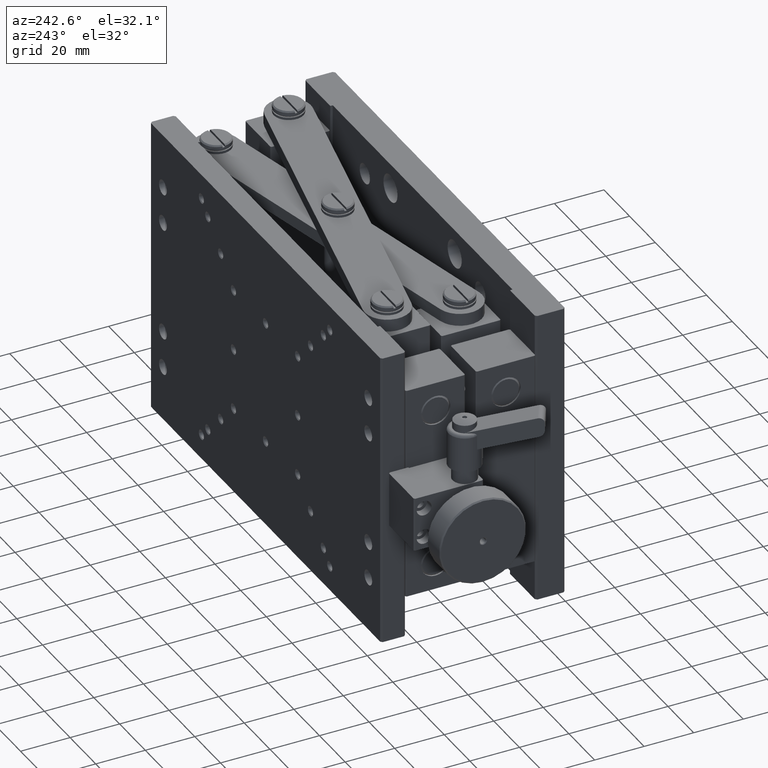
[diagram: clean part render]
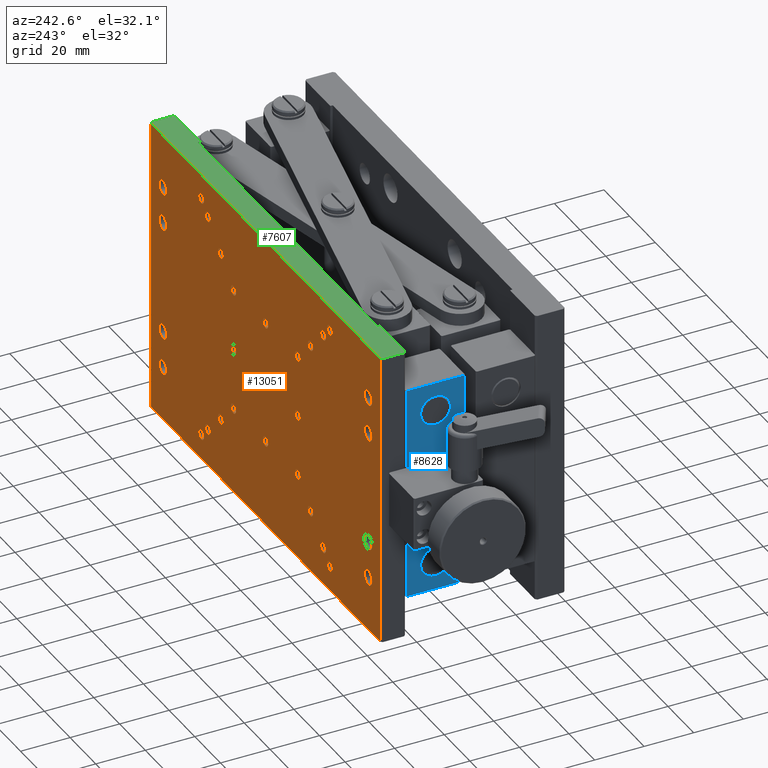
[diagram: same view with three faces highlighted in distinct colors, each labeled with its STEP entity id]
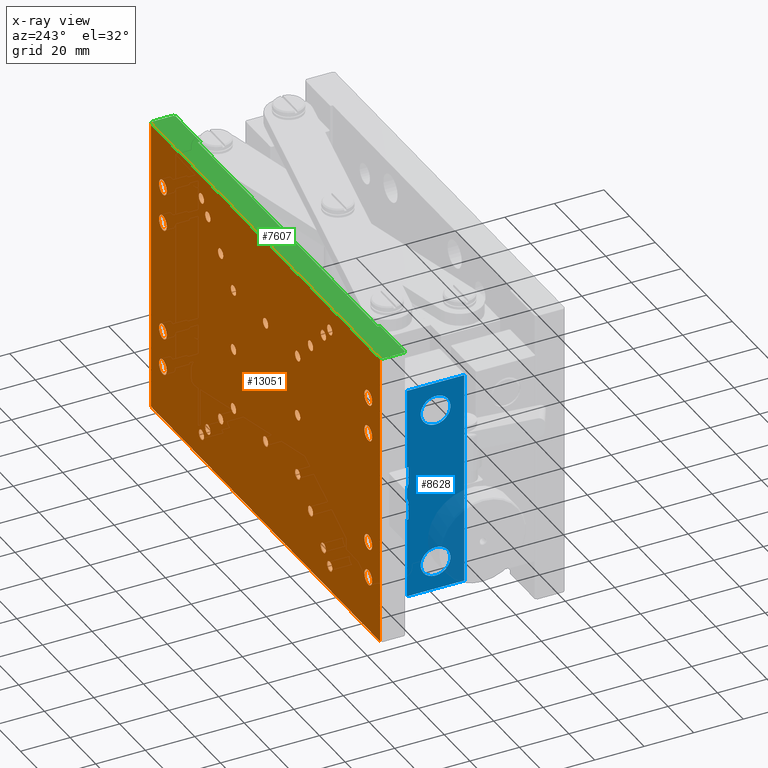
[diagram: x-ray of the same camera — body ghosted, the three highlighted faces saturated]
A machine part, auxiliary view with three faces highlighted in distinct colors.
The next image is the same camera in x-ray (body ghosted, the three faces saturated) — at least one of them is partly hidden behind the body in this view.
Their STEP definitions:

[orange] entity #13051 — the highlighted planar face has unit normal (-0, 1, 0).
#4 = EDGE_LOOP ( 'NONE', ( #4745 ) ) ;
#5 = CARTESIAN_POINT ( 'NONE',  ( 170.0000000000000000, 74.41000000000001080, -33.99999999999999289 ) ) ;
#47 = EDGE_CURVE ( 'NONE', #11344, #11344, #988, .T. ) ;
#48 = ORIENTED_EDGE ( 'NONE', *, *, #11168, .T. ) ;
#71 = ORIENTED_EDGE ( 'NONE', *, *, #3906, .T. ) ;
#86 = VERTEX_POINT ( 'NONE', #5390 ) ;
#116 = EDGE_CURVE ( 'NONE', #1397, #1397, #6694, .T. ) ;
#137 = EDGE_CURVE ( 'NONE', #13938, #13938, #13946, .T. ) ;
#154 = CARTESIAN_POINT ( 'NONE',  ( 125.0000000000000000, 74.41000000000030923, -25.00000000000000000 ) ) ;
#220 = CARTESIAN_POINT ( 'NONE',  ( 140.0000000000000000, 74.40999999993437086, -10.00000000000000000 ) ) ;
#232 = ORIENTED_EDGE ( 'NONE', *, *, #10275, .T. ) ;
#329 = AXIS2_PLACEMENT_3D ( 'NONE', #5728, #9763, #14896 ) ;
#420 = EDGE_CURVE ( 'NONE', #1726, #1726, #14221, .T. ) ;
#456 = VERTEX_POINT ( 'NONE', #14339 ) ;
#587 = PLANE ( 'NONE',  #15049 ) ;
#623 = VERTEX_POINT ( 'NONE', #11069 ) ;
#647 = CARTESIAN_POINT ( 'NONE',  ( 179.2899999999999920, 74.41000000000001080, 0.000000000000000000 ) ) ;
#668 = EDGE_LOOP ( 'NONE', ( #8953 ) ) ;
#687 = CARTESIAN_POINT ( 'NONE',  ( 45.00000000000000000, 74.41000000000030923, -103.0000000000086402 ) ) ;
#749 = CIRCLE ( 'NONE', #2888, 1.999999999952706276 ) ;
#867 = VERTEX_POINT ( 'NONE', #8444 ) ;
#889 = EDGE_LOOP ( 'NONE', ( #9336, #48, #10007, #15611 ) ) ;
#911 = EDGE_LOOP ( 'NONE', ( #16242 ) ) ;
#988 = CIRCLE ( 'NONE', #3148, 1.999999999995907718 ) ;
#1034 = EDGE_CURVE ( 'NONE', #14275, #14275, #8035, .T. ) ;
#1037 = DIRECTION ( 'NONE',  ( 0.000000000000000000, -1.000000000000000000, -0.000000000000000000 ) ) ;
#1068 = CARTESIAN_POINT ( 'NONE',  ( 140.0000000000000000, 74.40999999993437086, -8.000000000047293724 ) ) ;
#1124 = EDGE_CURVE ( 'NONE', #10653, #10653, #2953, .T. ) ;
#1136 = ORIENTED_EDGE ( 'NONE', *, *, #1034, .T. ) ;
#1181 = DIRECTION ( 'NONE',  ( -0.000000000000000000, -1.000000000000000000, -0.000000000000000000 ) ) ;
#1208 = VERTEX_POINT ( 'NONE', #6342 ) ;
#1257 = EDGE_CURVE ( 'NONE', #4088, #4088, #3766, .T. ) ;
#1261 = CIRCLE ( 'NONE', #16063, 1.999999999995907718 ) ;
#1267 = VECTOR ( 'NONE', #14893, 1000.000000000000000 ) ;
#1339 = FACE_BOUND ( 'NONE', #16145, .T. ) ;
#1360 = VERTEX_POINT ( 'NONE', #11634 ) ;
#1397 = VERTEX_POINT ( 'NONE', #12586 ) ;
#1590 = CARTESIAN_POINT ( 'NONE',  ( 179.2899999999999920, 74.41000000000001080, -120.0000000000000000 ) ) ;
#1591 = AXIS2_PLACEMENT_3D ( 'NONE', #15693, #7951, #13078 ) ;
#1592 = CARTESIAN_POINT ( 'NONE',  ( 55.00000000000000000, 74.41000000000030923, -25.00000000000000000 ) ) ;
#1624 = VECTOR ( 'NONE', #15797, 1000.000000000000000 ) ;
#1674 = EDGE_LOOP ( 'NONE', ( #5712 ) ) ;
#1678 = FACE_BOUND ( 'NONE', #6569, .T. ) ;
#1726 = VERTEX_POINT ( 'NONE', #4345 ) ;
#1741 = LINE ( 'NONE', #14550, #1624 ) ;
#2011 = CARTESIAN_POINT ( 'NONE',  ( 135.0000000000000000, 74.40999999992982339, -15.00000000000000000 ) ) ;
#2061 = CIRCLE ( 'NONE', #10127, 1.999999999973176124 ) ;
#2065 = VECTOR ( 'NONE', #11376, 1000.000000000000000 ) ;
#2079 = EDGE_CURVE ( 'NONE', #7115, #7115, #12461, .T. ) ;
#2142 = CIRCLE ( 'NONE', #5103, 2.000000000007273737 ) ;
#2197 = CARTESIAN_POINT ( 'NONE',  ( 65.00000000000000000, 74.41000000000030923, -60.00000000000000000 ) ) ;
#2236 = CARTESIAN_POINT ( 'NONE',  ( 115.0000000000000000, 74.41000000000030923, -85.00000000000000000 ) ) ;
#2394 = ORIENTED_EDGE ( 'NONE', *, *, #2079, .T. ) ;
#2476 = EDGE_LOOP ( 'NONE', ( #9426 ) ) ;
#2615 = CIRCLE ( 'NONE', #9068, 3.000000000000002665 ) ;
#2646 = ORIENTED_EDGE ( 'NONE', *, *, #3522, .T. ) ;
#2673 = CIRCLE ( 'NONE', #4823, 1.999999999984541921 ) ;
#2764 = VERTEX_POINT ( 'NONE', #10431 ) ;
#2766 = FACE_BOUND ( 'NONE', #14585, .T. ) ;
#2805 = ORIENTED_EDGE ( 'NONE', *, *, #8107, .T. ) ;
#2822 = CARTESIAN_POINT ( 'NONE',  ( 65.00000000000000000, 74.41000000000030923, -33.00000000001546141 ) ) ;
#2855 = DIRECTION ( 'NONE',  ( 0.000000000000000000, 0.000000000000000000, 1.000000000000000000 ) ) ;
#2888 = AXIS2_PLACEMENT_3D ( 'NONE', #2011, #16400, #14974 ) ;
#2893 = CIRCLE ( 'NONE', #10118, 2.000000000007273737 ) ;
#2900 = ORIENTED_EDGE ( 'NONE', *, *, #14664, .T. ) ;
#2915 = AXIS2_PLACEMENT_3D ( 'NONE', #154, #4095, #6710 ) ;
#2928 = VERTEX_POINT ( 'NONE', #15924 ) ;
#2953 = CIRCLE ( 'NONE', #10762, 3.000000000000002665 ) ;
#3107 = DIRECTION ( 'NONE',  ( 0.000000000000000000, -0.000000000000000000, 1.000000000000000000 ) ) ;
#3148 = AXIS2_PLACEMENT_3D ( 'NONE', #12343, #12498, #5959 ) ;
#3182 = DIRECTION ( 'NONE',  ( 0.000000000000000000, -1.000000000000000000, -0.000000000000000000 ) ) ;
#3275 = DIRECTION ( 'NONE',  ( 0.000000000000000000, 0.000000000000000000, 1.000000000000000000 ) ) ;
#3388 = DIRECTION ( 'NONE',  ( 0.000000000000000000, -1.000000000000000000, -0.000000000000000000 ) ) ;
#3405 = CARTESIAN_POINT ( 'NONE',  ( 40.00000000000000000, 74.41000000000030923, -110.0000000000000000 ) ) ;
#3522 = EDGE_CURVE ( 'NONE', #1208, #1208, #749, .T. ) ;
#3636 = DIRECTION ( 'NONE',  ( -0.000000000000000000, -1.000000000000000000, -0.000000000000000000 ) ) ;
#3693 = AXIS2_PLACEMENT_3D ( 'NONE', #7265, #8527, #11232 ) ;
#3749 = AXIS2_PLACEMENT_3D ( 'NONE', #220, #5352, #12830 ) ;
#3766 = CIRCLE ( 'NONE', #11286, 1.999999999984541921 ) ;
#3783 = AXIS2_PLACEMENT_3D ( 'NONE', #10044, #7418, #16349 ) ;
#3788 = FACE_BOUND ( 'NONE', #911, .T. ) ;
#3869 = FACE_BOUND ( 'NONE', #8649, .T. ) ;
#3872 = CIRCLE ( 'NONE', #13010, 3.000000000000002665 ) ;
#3906 = EDGE_CURVE ( 'NONE', #456, #456, #9228, .T. ) ;
#3952 = DIRECTION ( 'NONE',  ( 0.000000000000000000, 0.000000000000000000, 1.000000000000000000 ) ) ;
#3957 = CIRCLE ( 'NONE', #7989, 3.000000000000002665 ) ;
#3994 = AXIS2_PLACEMENT_3D ( 'NONE', #9095, #1181, #2855 ) ;
#4003 = EDGE_CURVE ( 'NONE', #9371, #9371, #16210, .T. ) ;
#4031 = EDGE_LOOP ( 'NONE', ( #11886 ) ) ;
#4038 = FACE_BOUND ( 'NONE', #10939, .T. ) ;
#4050 = EDGE_LOOP ( 'NONE', ( #12443 ) ) ;
#4059 = ORIENTED_EDGE ( 'NONE', *, *, #1124, .T. ) ;
#4075 = CIRCLE ( 'NONE', #13488, 3.000000000000002665 ) ;
#4088 = VERTEX_POINT ( 'NONE', #2822 ) ;
#4095 = DIRECTION ( 'NONE',  ( 0.000000000000000000, -1.000000000000000000, -0.000000000000000000 ) ) ;
#4207 = EDGE_LOOP ( 'NONE', ( #15286 ) ) ;
#4345 = CARTESIAN_POINT ( 'NONE',  ( 170.0000000000000000, 74.41000000000001080, -19.00000000000000000 ) ) ;
#4358 = DIRECTION ( 'NONE',  ( -0.000000000000000000, -1.000000000000000000, -0.000000000000000000 ) ) ;
#4379 = VERTEX_POINT ( 'NONE', #6854 ) ;
#4409 = VERTEX_POINT ( 'NONE', #12991 ) ;
#4486 = CARTESIAN_POINT ( 'NONE',  ( 55.00000000000000000, 74.41000000000030923, -23.00000000002455636 ) ) ;
#4655 = ORIENTED_EDGE ( 'NONE', *, *, #6371, .T. ) ;
#4745 = ORIENTED_EDGE ( 'NONE', *, *, #4003, .T. ) ;
#4810 = CARTESIAN_POINT ( 'NONE',  ( 179.2899999999999920, 74.41000000000001080, -120.0000000000000000 ) ) ;
#4811 = LINE ( 'NONE', #6157, #2065 ) ;
#4823 = AXIS2_PLACEMENT_3D ( 'NONE', #5882, #9753, #3275 ) ;
#4861 = EDGE_LOOP ( 'NONE', ( #8198 ) ) ;
#5043 = FACE_BOUND ( 'NONE', #6537, .T. ) ;
#5103 = AXIS2_PLACEMENT_3D ( 'NONE', #6466, #11760, #12938 ) ;
#5145 = EDGE_CURVE ( 'NONE', #6294, #2928, #1741, .T. ) ;
#5150 = DIRECTION ( 'NONE',  ( 0.000000000000000000, 0.000000000000000000, 1.000000000000000000 ) ) ;
#5225 = DIRECTION ( 'NONE',  ( 0.000000000000000000, 0.000000000000000000, 1.000000000000000000 ) ) ;
#5256 = EDGE_CURVE ( 'NONE', #867, #867, #2673, .T. ) ;
#5352 = DIRECTION ( 'NONE',  ( 0.000000000000000000, -1.000000000000000000, -0.000000000000000000 ) ) ;
#5390 = CARTESIAN_POINT ( 'NONE',  ( 125.0000000000000000, 74.41000000000030923, -23.00000000002455636 ) ) ;
#5466 = FACE_BOUND ( 'NONE', #2476, .T. ) ;
#5637 = FACE_BOUND ( 'NONE', #5989, .T. ) ;
#5638 = DIRECTION ( 'NONE',  ( 0.000000000000000000, 0.000000000000000000, 1.000000000000000000 ) ) ;
#5663 = ORIENTED_EDGE ( 'NONE', *, *, #8146, .T. ) ;
#5712 = ORIENTED_EDGE ( 'NONE', *, *, #116, .T. ) ;
#5728 = CARTESIAN_POINT ( 'NONE',  ( 135.0000000000000000, 74.41000000000030923, -105.0000000000000000 ) ) ;
#5882 = CARTESIAN_POINT ( 'NONE',  ( 115.0000000000000000, 74.41000000000030923, -35.00000000000000000 ) ) ;
#5907 = DIRECTION ( 'NONE',  ( 0.000000000000000000, 0.000000000000000000, 1.000000000000000000 ) ) ;
#5959 = DIRECTION ( 'NONE',  ( 0.000000000000000000, 0.000000000000000000, 1.000000000000000000 ) ) ;
#5966 = ORIENTED_EDGE ( 'NONE', *, *, #7916, .T. ) ;
#5989 = EDGE_LOOP ( 'NONE', ( #2394 ) ) ;
#6005 = CARTESIAN_POINT ( 'NONE',  ( 170.0000000000000000, 74.41000000000001080, -80.00000000000000000 ) ) ;
#6014 = DIRECTION ( 'NONE',  ( 0.000000000000000000, 0.000000000000000000, 1.000000000000000000 ) ) ;
#6073 = ORIENTED_EDGE ( 'NONE', *, *, #137, .T. ) ;
#6157 = CARTESIAN_POINT ( 'NONE',  ( 0.7100000000000161737, 74.41000000000001080, -120.0000000000000000 ) ) ;
#6177 = EDGE_LOOP ( 'NONE', ( #1136 ) ) ;
#6229 = DIRECTION ( 'NONE',  ( 0.000000000000000000, 0.000000000000000000, 1.000000000000000000 ) ) ;
#6248 = VERTEX_POINT ( 'NONE', #8937 ) ;
#6294 = VERTEX_POINT ( 'NONE', #4810 ) ;
#6311 = FACE_BOUND ( 'NONE', #13715, .T. ) ;
#6342 = CARTESIAN_POINT ( 'NONE',  ( 135.0000000000000000, 74.40999999992982339, -13.00000000004729372 ) ) ;
#6371 = EDGE_CURVE ( 'NONE', #10116, #10116, #3872, .T. ) ;
#6402 = CARTESIAN_POINT ( 'NONE',  ( 90.00000000000000000, 74.41000000000030923, -35.00000000000000000 ) ) ;
#6466 = CARTESIAN_POINT ( 'NONE',  ( 115.0000000000000000, 74.41000000000030923, -60.00000000000000000 ) ) ;
#6537 = EDGE_LOOP ( 'NONE', ( #71 ) ) ;
#6560 = DIRECTION ( 'NONE',  ( -0.000000000000000000, -1.000000000000000000, -0.000000000000000000 ) ) ;
#6569 = EDGE_LOOP ( 'NONE', ( #2805 ) ) ;
#6694 = CIRCLE ( 'NONE', #1591, 1.999999999982265964 ) ;
#6710 = DIRECTION ( 'NONE',  ( 0.000000000000000000, 0.000000000000000000, 1.000000000000000000 ) ) ;
#6733 = CARTESIAN_POINT ( 'NONE',  ( 90.00000000000000000, 74.41000000000030923, -85.00000000000000000 ) ) ;
#6826 = CARTESIAN_POINT ( 'NONE',  ( 10.00000000000000000, 74.41000000000001080, -80.00000000000000000 ) ) ;
#6854 = CARTESIAN_POINT ( 'NONE',  ( 179.2899999999999920, 74.41000000000001080, 0.000000000000000000 ) ) ;
#6905 = VERTEX_POINT ( 'NONE', #12208 ) ;
#6980 = EDGE_LOOP ( 'NONE', ( #4059 ) ) ;
#7018 = VERTEX_POINT ( 'NONE', #4486 ) ;
#7059 = FACE_BOUND ( 'NONE', #15423, .T. ) ;
#7071 = VERTEX_POINT ( 'NONE', #687 ) ;
#7115 = VERTEX_POINT ( 'NONE', #12241 ) ;
#7265 = CARTESIAN_POINT ( 'NONE',  ( 125.0000000000000000, 74.41000000000030923, -95.00000000000000000 ) ) ;
#7323 = DIRECTION ( 'NONE',  ( 0.000000000000000000, -1.000000000000000000, -0.000000000000000000 ) ) ;
#7418 = DIRECTION ( 'NONE',  ( 0.000000000000000000, -1.000000000000000000, -0.000000000000000000 ) ) ;
#7595 = DIRECTION ( 'NONE',  ( -0.000000000000000000, -1.000000000000000000, -0.000000000000000000 ) ) ;
#7823 = EDGE_CURVE ( 'NONE', #7843, #7843, #4075, .T. ) ;
#7843 = VERTEX_POINT ( 'NONE', #6826 ) ;
#7861 = CARTESIAN_POINT ( 'NONE',  ( 115.0000000000000000, 74.41000000000030923, -83.00000000002683009 ) ) ;
#7901 = FACE_BOUND ( 'NONE', #10663, .T. ) ;
#7914 = DIRECTION ( 'NONE',  ( 0.000000000000000000, 0.000000000000000000, 1.000000000000000000 ) ) ;
#7916 = EDGE_CURVE ( 'NONE', #1360, #1360, #9185, .T. ) ;
#7951 = DIRECTION ( 'NONE',  ( 0.000000000000000000, -1.000000000000000000, -0.000000000000000000 ) ) ;
#7989 = AXIS2_PLACEMENT_3D ( 'NONE', #12556, #7595, #8693 ) ;
#7994 = DIRECTION ( 'NONE',  ( -0.000000000000000000, -1.000000000000000000, -0.000000000000000000 ) ) ;
#8035 = CIRCLE ( 'NONE', #3994, 2.999999999999999112 ) ;
#8079 = DIRECTION ( 'NONE',  ( 0.000000000000000000, -1.000000000000000000, -0.000000000000000000 ) ) ;
#8107 = EDGE_CURVE ( 'NONE', #6905, #6905, #10478, .T. ) ;
#8146 = EDGE_CURVE ( 'NONE', #13381, #13381, #2142, .T. ) ;
#8159 = FACE_BOUND ( 'NONE', #4050, .T. ) ;
#8172 = CARTESIAN_POINT ( 'NONE',  ( 170.0000000000000000, 74.41000000000001080, -98.00000000000000000 ) ) ;
#8184 = AXIS2_PLACEMENT_3D ( 'NONE', #12391, #3388, #15081 ) ;
#8198 = ORIENTED_EDGE ( 'NONE', *, *, #10224, .T. ) ;
#8444 = CARTESIAN_POINT ( 'NONE',  ( 115.0000000000000000, 74.41000000000030923, -33.00000000001546141 ) ) ;
#8527 = DIRECTION ( 'NONE',  ( 0.000000000000000000, -1.000000000000000000, -0.000000000000000000 ) ) ;
#8547 = CIRCLE ( 'NONE', #2915, 1.999999999975444975 ) ;
#8649 = EDGE_LOOP ( 'NONE', ( #4655 ) ) ;
#8693 = DIRECTION ( 'NONE',  ( 0.000000000000000000, 0.000000000000000000, 1.000000000000000000 ) ) ;
#8850 = EDGE_LOOP ( 'NONE', ( #2646 ) ) ;
#8853 = CIRCLE ( 'NONE', #11552, 1.999999999973176124 ) ;
#8863 = EDGE_CURVE ( 'NONE', #7071, #7071, #9430, .T. ) ;
#8899 = ORIENTED_EDGE ( 'NONE', *, *, #8863, .T. ) ;
#8916 = FACE_BOUND ( 'NONE', #668, .T. ) ;
#8937 = CARTESIAN_POINT ( 'NONE',  ( 65.00000000000000000, 74.41000000000030923, -57.99999999999272404 ) ) ;
#8953 = ORIENTED_EDGE ( 'NONE', *, *, #14393, .T. ) ;
#8998 = FACE_BOUND ( 'NONE', #15600, .T. ) ;
#9068 = AXIS2_PLACEMENT_3D ( 'NONE', #10412, #13943, #9150 ) ;
#9095 = CARTESIAN_POINT ( 'NONE',  ( 10.00000000000000000, 74.41000000000001080, -22.00000000000000000 ) ) ;
#9150 = DIRECTION ( 'NONE',  ( 0.000000000000000000, 0.000000000000000000, 1.000000000000000000 ) ) ;
#9168 = VERTEX_POINT ( 'NONE', #12867 ) ;
#9185 = CIRCLE ( 'NONE', #329, 1.999999999991355804 ) ;
#9228 = CIRCLE ( 'NONE', #14889, 3.000000000000002665 ) ;
#9336 = ORIENTED_EDGE ( 'NONE', *, *, #5145, .T. ) ;
#9365 = AXIS2_PLACEMENT_3D ( 'NONE', #6402, #14312, #5225 ) ;
#9371 = VERTEX_POINT ( 'NONE', #7861 ) ;
#9424 = DIRECTION ( 'NONE',  ( 0.000000000000000000, 0.000000000000000000, 1.000000000000000000 ) ) ;
#9426 = ORIENTED_EDGE ( 'NONE', *, *, #10294, .T. ) ;
#9430 = CIRCLE ( 'NONE', #3783, 1.999999999991355804 ) ;
#9753 = DIRECTION ( 'NONE',  ( 0.000000000000000000, -1.000000000000000000, -0.000000000000000000 ) ) ;
#9763 = DIRECTION ( 'NONE',  ( 0.000000000000000000, -1.000000000000000000, -0.000000000000000000 ) ) ;
#10007 = ORIENTED_EDGE ( 'NONE', *, *, #11835, .T. ) ;
#10044 = CARTESIAN_POINT ( 'NONE',  ( 45.00000000000000000, 74.41000000000030923, -105.0000000000000000 ) ) ;
#10116 = VERTEX_POINT ( 'NONE', #13737 ) ;
#10118 = AXIS2_PLACEMENT_3D ( 'NONE', #2197, #7323, #15078 ) ;
#10127 = AXIS2_PLACEMENT_3D ( 'NONE', #13799, #11126, #6229 ) ;
#10184 = FACE_BOUND ( 'NONE', #4861, .T. ) ;
#10224 = EDGE_CURVE ( 'NONE', #14381, #14381, #3957, .T. ) ;
#10275 = EDGE_CURVE ( 'NONE', #11613, #11613, #1261, .T. ) ;
#10294 = EDGE_CURVE ( 'NONE', #9168, #9168, #12548, .T. ) ;
#10412 = CARTESIAN_POINT ( 'NONE',  ( 170.0000000000000000, 74.41000000000001080, -83.00000000000000000 ) ) ;
#10431 = CARTESIAN_POINT ( 'NONE',  ( 90.00000000000000000, 74.41000000000030923, -33.00000000001546141 ) ) ;
#10432 = FACE_BOUND ( 'NONE', #8850, .T. ) ;
#10478 = CIRCLE ( 'NONE', #11819, 1.999999999952706276 ) ;
#10513 = DIRECTION ( 'NONE',  ( 0.000000000000000000, 0.000000000000000000, 1.000000000000000000 ) ) ;
#10564 = EDGE_LOOP ( 'NONE', ( #14534 ) ) ;
#10597 = FACE_BOUND ( 'NONE', #13681, .T. ) ;
#10653 = VERTEX_POINT ( 'NONE', #11839 ) ;
#10663 = EDGE_LOOP ( 'NONE', ( #5663 ) ) ;
#10685 = AXIS2_PLACEMENT_3D ( 'NONE', #1592, #8079, #5638 ) ;
#10713 = ORIENTED_EDGE ( 'NONE', *, *, #47, .T. ) ;
#10762 = AXIS2_PLACEMENT_3D ( 'NONE', #8172, #7994, #7914 ) ;
#10794 = EDGE_CURVE ( 'NONE', #2764, #2764, #11781, .T. ) ;
#10809 = EDGE_LOOP ( 'NONE', ( #13857 ) ) ;
#10859 = FACE_BOUND ( 'NONE', #10564, .T. ) ;
#10939 = EDGE_LOOP ( 'NONE', ( #6073 ) ) ;
#11069 = CARTESIAN_POINT ( 'NONE',  ( 65.00000000000000000, 74.41000000000030923, -83.00000000002683009 ) ) ;
#11101 = EDGE_CURVE ( 'NONE', #86, #86, #8547, .T. ) ;
#11126 = DIRECTION ( 'NONE',  ( 0.000000000000000000, -1.000000000000000000, -0.000000000000000000 ) ) ;
#11168 = EDGE_CURVE ( 'NONE', #2928, #14484, #4811, .T. ) ;
#11232 = DIRECTION ( 'NONE',  ( 0.000000000000000000, 0.000000000000000000, 1.000000000000000000 ) ) ;
#11272 = DIRECTION ( 'NONE',  ( 0.000000000000000000, -1.000000000000000000, -0.000000000000000000 ) ) ;
#11286 = AXIS2_PLACEMENT_3D ( 'NONE', #11417, #13936, #5907 ) ;
#11344 = VERTEX_POINT ( 'NONE', #12927 ) ;
#11351 = CARTESIAN_POINT ( 'NONE',  ( 179.2899999999999920, 74.41000000000001080, -120.0000000000000000 ) ) ;
#11376 = DIRECTION ( 'NONE',  ( 0.000000000000000000, -0.000000000000000000, 1.000000000000000000 ) ) ;
#11417 = CARTESIAN_POINT ( 'NONE',  ( 65.00000000000000000, 74.41000000000030923, -35.00000000000000000 ) ) ;
#11528 = FACE_OUTER_BOUND ( 'NONE', #889, .T. ) ;
#11552 = AXIS2_PLACEMENT_3D ( 'NONE', #6733, #14466, #9424 ) ;
#11613 = VERTEX_POINT ( 'NONE', #11774 ) ;
#11614 = FACE_BOUND ( 'NONE', #4, .T. ) ;
#11634 = CARTESIAN_POINT ( 'NONE',  ( 135.0000000000000000, 74.41000000000030923, -103.0000000000086402 ) ) ;
#11651 = AXIS2_PLACEMENT_3D ( 'NONE', #2236, #3182, #12254 ) ;
#11760 = DIRECTION ( 'NONE',  ( 0.000000000000000000, -1.000000000000000000, -0.000000000000000000 ) ) ;
#11774 = CARTESIAN_POINT ( 'NONE',  ( 40.00000000000000000, 74.41000000000030923, -108.0000000000040927 ) ) ;
#11781 = CIRCLE ( 'NONE', #9365, 1.999999999984541921 ) ;
#11819 = AXIS2_PLACEMENT_3D ( 'NONE', #14036, #11272, #12764 ) ;
#11835 = EDGE_CURVE ( 'NONE', #14484, #4379, #14872, .T. ) ;
#11839 = CARTESIAN_POINT ( 'NONE',  ( 170.0000000000000000, 74.41000000000001080, -95.00000000000000000 ) ) ;
#11886 = ORIENTED_EDGE ( 'NONE', *, *, #14109, .T. ) ;
#11945 = FACE_BOUND ( 'NONE', #1674, .T. ) ;
#12008 = CARTESIAN_POINT ( 'NONE',  ( 10.00000000000000000, 74.41000000000001080, -37.00000000000000000 ) ) ;
#12024 = DIRECTION ( 'NONE',  ( -0.000000000000000000, 1.000000000000000000, 0.000000000000000000 ) ) ;
#12042 = VECTOR ( 'NONE', #14537, 1000.000000000000000 ) ;
#12208 = CARTESIAN_POINT ( 'NONE',  ( 40.00000000000000000, 74.40999999993437086, -8.000000000047293724 ) ) ;
#12228 = VERTEX_POINT ( 'NONE', #6005 ) ;
#12241 = CARTESIAN_POINT ( 'NONE',  ( 45.00000000000000000, 74.40999999992982339, -13.00000000004729372 ) ) ;
#12254 = DIRECTION ( 'NONE',  ( 0.000000000000000000, 0.000000000000000000, 1.000000000000000000 ) ) ;
#12259 = EDGE_LOOP ( 'NONE', ( #8899 ) ) ;
#12343 = CARTESIAN_POINT ( 'NONE',  ( 140.0000000000000000, 74.41000000000030923, -110.0000000000000000 ) ) ;
#12356 = LINE ( 'NONE', #11351, #1267 ) ;
#12391 = CARTESIAN_POINT ( 'NONE',  ( 45.00000000000000000, 74.40999999992982339, -15.00000000000000000 ) ) ;
#12443 = ORIENTED_EDGE ( 'NONE', *, *, #16132, .T. ) ;
#12461 = CIRCLE ( 'NONE', #8184, 1.999999999952706276 ) ;
#12498 = DIRECTION ( 'NONE',  ( 0.000000000000000000, -1.000000000000000000, -0.000000000000000000 ) ) ;
#12548 = CIRCLE ( 'NONE', #3693, 1.999999999982265964 ) ;
#12556 = CARTESIAN_POINT ( 'NONE',  ( 170.0000000000000000, 74.41000000000001080, -37.00000000000000000 ) ) ;
#12586 = CARTESIAN_POINT ( 'NONE',  ( 55.00000000000000000, 74.41000000000030923, -93.00000000001773515 ) ) ;
#12707 = CARTESIAN_POINT ( 'NONE',  ( 10.00000000000000000, 74.41000000000001080, -98.00000000000000000 ) ) ;
#12764 = DIRECTION ( 'NONE',  ( 0.000000000000000000, 0.000000000000000000, 1.000000000000000000 ) ) ;
#12830 = DIRECTION ( 'NONE',  ( 0.000000000000000000, 0.000000000000000000, 1.000000000000000000 ) ) ;
#12867 = CARTESIAN_POINT ( 'NONE',  ( 125.0000000000000000, 74.41000000000030923, -93.00000000001773515 ) ) ;
#12868 = FACE_BOUND ( 'NONE', #6980, .T. ) ;
#12927 = CARTESIAN_POINT ( 'NONE',  ( 140.0000000000000000, 74.41000000000030923, -108.0000000000040927 ) ) ;
#12938 = DIRECTION ( 'NONE',  ( 0.000000000000000000, 0.000000000000000000, 1.000000000000000000 ) ) ;
#12991 = CARTESIAN_POINT ( 'NONE',  ( 90.00000000000000000, 74.41000000000030923, -83.00000000002683009 ) ) ;
#13010 = AXIS2_PLACEMENT_3D ( 'NONE', #12707, #3636, #5150 ) ;
#13051 = ADVANCED_FACE ( 'NONE', ( #11528, #2766, #3869, #12868, #6311, #16560, #10184, #5043, #15312, #3788, #10432, #4038, #7901, #8998, #14129, #1339, #8916, #11614, #5466, #10597, #7059, #10859, #14643, #11945, #15723, #15984, #8159, #5637, #1678 ), #587, .T. ) ;
#13078 = DIRECTION ( 'NONE',  ( 0.000000000000000000, 0.000000000000000000, 1.000000000000000000 ) ) ;
#13111 = EDGE_CURVE ( 'NONE', #4409, #4409, #8853, .T. ) ;
#13381 = VERTEX_POINT ( 'NONE', #14908 ) ;
#13488 = AXIS2_PLACEMENT_3D ( 'NONE', #15813, #6560, #3952 ) ;
#13583 = EDGE_LOOP ( 'NONE', ( #232 ) ) ;
#13586 = DIRECTION ( 'NONE',  ( -0.000000000000000000, -1.000000000000000000, -0.000000000000000000 ) ) ;
#13681 = EDGE_LOOP ( 'NONE', ( #5966 ) ) ;
#13715 = EDGE_LOOP ( 'NONE', ( #14567 ) ) ;
#13737 = CARTESIAN_POINT ( 'NONE',  ( 10.00000000000000000, 74.41000000000001080, -95.00000000000000000 ) ) ;
#13799 = CARTESIAN_POINT ( 'NONE',  ( 65.00000000000000000, 74.41000000000030923, -85.00000000000000000 ) ) ;
#13829 = DIRECTION ( 'NONE',  ( 0.000000000000000000, 0.000000000000000000, 1.000000000000000000 ) ) ;
#13857 = ORIENTED_EDGE ( 'NONE', *, *, #420, .T. ) ;
#13936 = DIRECTION ( 'NONE',  ( 0.000000000000000000, -1.000000000000000000, -0.000000000000000000 ) ) ;
#13938 = VERTEX_POINT ( 'NONE', #1068 ) ;
#13943 = DIRECTION ( 'NONE',  ( -0.000000000000000000, -1.000000000000000000, -0.000000000000000000 ) ) ;
#13946 = CIRCLE ( 'NONE', #3749, 1.999999999952706276 ) ;
#14014 = ORIENTED_EDGE ( 'NONE', *, *, #1257, .T. ) ;
#14036 = CARTESIAN_POINT ( 'NONE',  ( 40.00000000000000000, 74.40999999993437086, -10.00000000000000000 ) ) ;
#14109 = EDGE_CURVE ( 'NONE', #623, #623, #2061, .T. ) ;
#14129 = FACE_BOUND ( 'NONE', #4207, .T. ) ;
#14221 = CIRCLE ( 'NONE', #16366, 2.999999999999999112 ) ;
#14275 = VERTEX_POINT ( 'NONE', #15620 ) ;
#14312 = DIRECTION ( 'NONE',  ( 0.000000000000000000, -1.000000000000000000, -0.000000000000000000 ) ) ;
#14339 = CARTESIAN_POINT ( 'NONE',  ( 10.00000000000000000, 74.41000000000001080, -33.99999999999999289 ) ) ;
#14381 = VERTEX_POINT ( 'NONE', #5 ) ;
#14393 = EDGE_CURVE ( 'NONE', #7018, #7018, #14711, .T. ) ;
#14466 = DIRECTION ( 'NONE',  ( 0.000000000000000000, -1.000000000000000000, -0.000000000000000000 ) ) ;
#14484 = VERTEX_POINT ( 'NONE', #14968 ) ;
#14518 = EDGE_CURVE ( 'NONE', #4379, #6294, #12356, .T. ) ;
#14534 = ORIENTED_EDGE ( 'NONE', *, *, #13111, .T. ) ;
#14537 = DIRECTION ( 'NONE',  ( 1.000000000000000000, 0.000000000000000000, 0.000000000000000000 ) ) ;
#14550 = CARTESIAN_POINT ( 'NONE',  ( 179.2899999999999920, 74.41000000000001080, -120.0000000000000000 ) ) ;
#14567 = ORIENTED_EDGE ( 'NONE', *, *, #7823, .T. ) ;
#14585 = EDGE_LOOP ( 'NONE', ( #2900 ) ) ;
#14643 = FACE_BOUND ( 'NONE', #4031, .T. ) ;
#14664 = EDGE_CURVE ( 'NONE', #12228, #12228, #2615, .T. ) ;
#14711 = CIRCLE ( 'NONE', #10685, 1.999999999975444975 ) ;
#14872 = LINE ( 'NONE', #647, #12042 ) ;
#14889 = AXIS2_PLACEMENT_3D ( 'NONE', #12008, #4358, #10513 ) ;
#14893 = DIRECTION ( 'NONE',  ( -0.000000000000000000, 0.000000000000000000, -1.000000000000000000 ) ) ;
#14896 = DIRECTION ( 'NONE',  ( 0.000000000000000000, 0.000000000000000000, 1.000000000000000000 ) ) ;
#14908 = CARTESIAN_POINT ( 'NONE',  ( 115.0000000000000000, 74.41000000000030923, -57.99999999999272404 ) ) ;
#14940 = CARTESIAN_POINT ( 'NONE',  ( 170.0000000000000000, 74.41000000000001080, -22.00000000000000000 ) ) ;
#14968 = CARTESIAN_POINT ( 'NONE',  ( 0.7100000000000143974, 74.41000000000001080, 0.000000000000000000 ) ) ;
#14974 = DIRECTION ( 'NONE',  ( 0.000000000000000000, 0.000000000000000000, 1.000000000000000000 ) ) ;
#15049 = AXIS2_PLACEMENT_3D ( 'NONE', #1590, #12024, #3107 ) ;
#15078 = DIRECTION ( 'NONE',  ( 0.000000000000000000, 0.000000000000000000, 1.000000000000000000 ) ) ;
#15081 = DIRECTION ( 'NONE',  ( 0.000000000000000000, 0.000000000000000000, 1.000000000000000000 ) ) ;
#15286 = ORIENTED_EDGE ( 'NONE', *, *, #10794, .T. ) ;
#15312 = FACE_BOUND ( 'NONE', #6177, .T. ) ;
#15423 = EDGE_LOOP ( 'NONE', ( #10713 ) ) ;
#15600 = EDGE_LOOP ( 'NONE', ( #15931 ) ) ;
#15611 = ORIENTED_EDGE ( 'NONE', *, *, #14518, .T. ) ;
#15620 = CARTESIAN_POINT ( 'NONE',  ( 10.00000000000000000, 74.41000000000001080, -19.00000000000000000 ) ) ;
#15693 = CARTESIAN_POINT ( 'NONE',  ( 55.00000000000000000, 74.41000000000030923, -95.00000000000000000 ) ) ;
#15723 = FACE_BOUND ( 'NONE', #12259, .T. ) ;
#15797 = DIRECTION ( 'NONE',  ( -1.000000000000000000, -0.000000000000000000, -0.000000000000000000 ) ) ;
#15813 = CARTESIAN_POINT ( 'NONE',  ( 10.00000000000000000, 74.41000000000001080, -83.00000000000000000 ) ) ;
#15924 = CARTESIAN_POINT ( 'NONE',  ( 0.7100000000000143974, 74.41000000000001080, -120.0000000000000000 ) ) ;
#15931 = ORIENTED_EDGE ( 'NONE', *, *, #5256, .T. ) ;
#15984 = FACE_BOUND ( 'NONE', #13583, .T. ) ;
#16063 = AXIS2_PLACEMENT_3D ( 'NONE', #3405, #1037, #6014 ) ;
#16132 = EDGE_CURVE ( 'NONE', #6248, #6248, #2893, .T. ) ;
#16145 = EDGE_LOOP ( 'NONE', ( #14014 ) ) ;
#16210 = CIRCLE ( 'NONE', #11651, 1.999999999973176124 ) ;
#16242 = ORIENTED_EDGE ( 'NONE', *, *, #11101, .T. ) ;
#16349 = DIRECTION ( 'NONE',  ( 0.000000000000000000, 0.000000000000000000, 1.000000000000000000 ) ) ;
#16366 = AXIS2_PLACEMENT_3D ( 'NONE', #14940, #13586, #13829 ) ;
#16400 = DIRECTION ( 'NONE',  ( 0.000000000000000000, -1.000000000000000000, -0.000000000000000000 ) ) ;
#16560 = FACE_BOUND ( 'NONE', #10809, .T. ) ;

[blue] entity #8628 — the highlighted planar face has unit normal (-1, 0, 0).
#189 = AXIS2_PLACEMENT_3D ( 'NONE', #1912, #9748, #8474 ) ;
#533 = VERTEX_POINT ( 'NONE', #11394 ) ;
#967 = EDGE_CURVE ( 'NONE', #16616, #3267, #6320, .T. ) ;
#971 = VERTEX_POINT ( 'NONE', #2451 ) ;
#1062 = LINE ( 'NONE', #11491, #7343 ) ;
#1094 = CARTESIAN_POINT ( 'NONE',  ( 0.000000000000000000, 64.00000000000000000, -103.5000000000000142 ) ) ;
#1296 = VERTEX_POINT ( 'NONE', #11044 ) ;
#1433 = DIRECTION ( 'NONE',  ( 0.000000000000000000, 0.000000000000000000, 1.000000000000000000 ) ) ;
#1454 = EDGE_CURVE ( 'NONE', #12947, #16616, #11589, .T. ) ;
#1564 = DIRECTION ( 'NONE',  ( -0.000000000000000000, -0.000000000000000000, -1.000000000000000000 ) ) ;
#1637 = FACE_BOUND ( 'NONE', #2839, .T. ) ;
#1659 = VECTOR ( 'NONE', #9054, 1000.000000000000000 ) ;
#1691 = VERTEX_POINT ( 'NONE', #16515 ) ;
#1899 = CARTESIAN_POINT ( 'NONE',  ( 0.000000000000000000, 64.00000000000000000, -58.24090932581632529 ) ) ;
#1912 = CARTESIAN_POINT ( 'NONE',  ( -8.673617379884035472E-16, 54.40999999999999659, -60.00000000000000000 ) ) ;
#2247 = EDGE_CURVE ( 'NONE', #2883, #12947, #12710, .T. ) ;
#2357 = LINE ( 'NONE', #1094, #8587 ) ;
#2451 = CARTESIAN_POINT ( 'NONE',  ( -1.156482317317871331E-15, 64.00000000000000000, -16.50000000000000000 ) ) ;
#2558 = CARTESIAN_POINT ( 'NONE',  ( 0.000000000000000000, 64.00000000000000000, -49.00000000000000000 ) ) ;
#2815 = CARTESIAN_POINT ( 'NONE',  ( -2.045770960042625739E-16, 64.00000000000000000, -71.00000000000001421 ) ) ;
#2839 = EDGE_LOOP ( 'NONE', ( #3389 ) ) ;
#2883 = VERTEX_POINT ( 'NONE', #2815 ) ;
#3121 = ORIENTED_EDGE ( 'NONE', *, *, #4512, .T. ) ;
#3267 = VERTEX_POINT ( 'NONE', #12880 ) ;
#3285 = DIRECTION ( 'NONE',  ( -1.000000000000000000, 0.000000000000000000, 0.000000000000000000 ) ) ;
#3322 = VERTEX_POINT ( 'NONE', #16266 ) ;
#3389 = ORIENTED_EDGE ( 'NONE', *, *, #8653, .T. ) ;
#3445 = VERTEX_POINT ( 'NONE', #11871 ) ;
#3765 = ORIENTED_EDGE ( 'NONE', *, *, #10739, .F. ) ;
#3771 = ORIENTED_EDGE ( 'NONE', *, *, #4181, .T. ) ;
#3826 = ORIENTED_EDGE ( 'NONE', *, *, #12159, .T. ) ;
#3879 = CARTESIAN_POINT ( 'NONE',  ( 0.000000000000000000, 40.82000000000000028, -103.5000000000000142 ) ) ;
#4071 = DIRECTION ( 'NONE',  ( -0.000000000000000000, -1.000000000000000000, 0.000000000000000000 ) ) ;
#4181 = EDGE_CURVE ( 'NONE', #1296, #2883, #1062, .T. ) ;
#4311 = CIRCLE ( 'NONE', #9152, 6.000000000000001776 ) ;
#4512 = EDGE_CURVE ( 'NONE', #971, #8841, #2357, .T. ) ;
#4756 = CIRCLE ( 'NONE', #8258, 9.749999999999994671 ) ;
#4771 = CIRCLE ( 'NONE', #5593, 6.000000000000005329 ) ;
#5230 = DIRECTION ( 'NONE',  ( -0.000000000000000000, -0.000000000000000000, -1.000000000000000000 ) ) ;
#5259 = DIRECTION ( 'NONE',  ( 0.000000000000000000, 0.000000000000000000, -1.000000000000000000 ) ) ;
#5342 = VECTOR ( 'NONE', #1433, 1000.000000000000000 ) ;
#5343 = FACE_OUTER_BOUND ( 'NONE', #16465, .T. ) ;
#5400 = LINE ( 'NONE', #7911, #9639 ) ;
#5593 = AXIS2_PLACEMENT_3D ( 'NONE', #15964, #9487, #14698 ) ;
#5708 = VERTEX_POINT ( 'NONE', #1899 ) ;
#5888 = ORIENTED_EDGE ( 'NONE', *, *, #14828, .T. ) ;
#6117 = LINE ( 'NONE', #11262, #1659 ) ;
#6227 = CARTESIAN_POINT ( 'NONE',  ( -1.156482317317871331E-15, 64.00000000000000000, -103.5000000000000000 ) ) ;
#6320 = LINE ( 'NONE', #3879, #5342 ) ;
#6685 = FACE_BOUND ( 'NONE', #15819, .T. ) ;
#6720 = ORIENTED_EDGE ( 'NONE', *, *, #1454, .T. ) ;
#6810 = DIRECTION ( 'NONE',  ( 0.000000000000000000, 0.000000000000000000, 1.000000000000000000 ) ) ;
#7060 = CARTESIAN_POINT ( 'NONE',  ( 0.000000000000000000, 54.40999999999999659, -60.00000000000000000 ) ) ;
#7201 = VECTOR ( 'NONE', #4071, 1000.000000000000000 ) ;
#7343 = VECTOR ( 'NONE', #12829, 1000.000000000000000 ) ;
#7494 = DIRECTION ( 'NONE',  ( -0.000000000000000000, -0.000000000000000000, -1.000000000000000000 ) ) ;
#7537 = EDGE_CURVE ( 'NONE', #11917, #1296, #12381, .T. ) ;
#7644 = VECTOR ( 'NONE', #5230, 1000.000000000000000 ) ;
#7770 = VECTOR ( 'NONE', #10569, 1000.000000000000000 ) ;
#7867 = CARTESIAN_POINT ( 'NONE',  ( 2.775557561562889773E-14, 52.41000000000000369, -28.00000000000000000 ) ) ;
#7911 = CARTESIAN_POINT ( 'NONE',  ( 0.000000000000000000, 74.41000000000001080, -16.50000000000000000 ) ) ;
#8258 = AXIS2_PLACEMENT_3D ( 'NONE', #7060, #3285, #6810 ) ;
#8380 = ORIENTED_EDGE ( 'NONE', *, *, #14324, .T. ) ;
#8474 = DIRECTION ( 'NONE',  ( 0.000000000000000000, 0.000000000000000000, 1.000000000000000000 ) ) ;
#8587 = VECTOR ( 'NONE', #7494, 1000.000000000000000 ) ;
#8628 = ADVANCED_FACE ( 'NONE', ( #5343, #6685, #1637 ), #11823, .T. ) ;
#8653 = EDGE_CURVE ( 'NONE', #14834, #14834, #4311, .T. ) ;
#8841 = VERTEX_POINT ( 'NONE', #13503 ) ;
#9054 = DIRECTION ( 'NONE',  ( -0.000000000000000000, -0.000000000000000000, -1.000000000000000000 ) ) ;
#9152 = AXIS2_PLACEMENT_3D ( 'NONE', #7867, #11485, #5259 ) ;
#9225 = LINE ( 'NONE', #13177, #14992 ) ;
#9487 = DIRECTION ( 'NONE',  ( 1.000000000000000000, 0.000000000000000000, 0.000000000000000000 ) ) ;
#9639 = VECTOR ( 'NONE', #15403, 1000.000000000000000 ) ;
#9702 = EDGE_CURVE ( 'NONE', #1691, #11917, #15494, .T. ) ;
#9748 = DIRECTION ( 'NONE',  ( -1.000000000000000000, 0.000000000000000000, 0.000000000000000000 ) ) ;
#9929 = ORIENTED_EDGE ( 'NONE', *, *, #967, .T. ) ;
#9986 = ORIENTED_EDGE ( 'NONE', *, *, #9702, .T. ) ;
#10112 = CARTESIAN_POINT ( 'NONE',  ( 0.000000000000000000, 64.00000000000000000, -103.5000000000000142 ) ) ;
#10475 = LINE ( 'NONE', #2558, #7201 ) ;
#10561 = DIRECTION ( 'NONE',  ( 0.000000000000000000, 0.000000000000000000, 1.000000000000000000 ) ) ;
#10569 = DIRECTION ( 'NONE',  ( 0.000000000000000000, -1.000000000000000000, -0.000000000000000000 ) ) ;
#10739 = EDGE_CURVE ( 'NONE', #971, #3267, #5400, .T. ) ;
#11044 = CARTESIAN_POINT ( 'NONE',  ( -1.445602896647339163E-16, 63.41000000000001080, -71.00000000000001421 ) ) ;
#11262 = CARTESIAN_POINT ( 'NONE',  ( 0.000000000000000000, 64.00000000000000000, -103.5000000000000142 ) ) ;
#11394 = CARTESIAN_POINT ( 'NONE',  ( 0.000000000000000000, 63.40999999999999659, -56.25000000000002132 ) ) ;
#11485 = DIRECTION ( 'NONE',  ( 1.000000000000000000, 0.000000000000000000, 0.000000000000000000 ) ) ;
#11491 = CARTESIAN_POINT ( 'NONE',  ( 0.000000000000000000, 64.00000000000000000, -71.00000000000001421 ) ) ;
#11572 = AXIS2_PLACEMENT_3D ( 'NONE', #14097, #14264, #10561 ) ;
#11589 = LINE ( 'NONE', #15451, #7770 ) ;
#11591 = CARTESIAN_POINT ( 'NONE',  ( -4.336808689942018722E-16, 40.82000000000000739, -103.5000000000000142 ) ) ;
#11716 = EDGE_CURVE ( 'NONE', #3445, #533, #9225, .T. ) ;
#11823 = PLANE ( 'NONE',  #11572 ) ;
#11868 = VECTOR ( 'NONE', #12133, 1000.000000000000000 ) ;
#11871 = CARTESIAN_POINT ( 'NONE',  ( 0.000000000000000000, 63.41000000000001080, -49.00000000000000711 ) ) ;
#11917 = VERTEX_POINT ( 'NONE', #12413 ) ;
#12133 = DIRECTION ( 'NONE',  ( -0.000000000000000000, -0.000000000000000000, -1.000000000000000000 ) ) ;
#12159 = EDGE_CURVE ( 'NONE', #8841, #3445, #10475, .T. ) ;
#12213 = CARTESIAN_POINT ( 'NONE',  ( 0.000000000000000000, 63.41000000000001080, -103.5000000000000142 ) ) ;
#12301 = ORIENTED_EDGE ( 'NONE', *, *, #7537, .T. ) ;
#12381 = LINE ( 'NONE', #12213, #11868 ) ;
#12413 = CARTESIAN_POINT ( 'NONE',  ( -4.336808689942017736E-16, 63.40999999999999659, -63.74999999999997158 ) ) ;
#12710 = LINE ( 'NONE', #10112, #7644 ) ;
#12812 = ORIENTED_EDGE ( 'NONE', *, *, #11716, .T. ) ;
#12829 = DIRECTION ( 'NONE',  ( 0.000000000000000000, 1.000000000000000000, -0.000000000000000000 ) ) ;
#12880 = CARTESIAN_POINT ( 'NONE',  ( -4.336808689942018722E-16, 40.82000000000000739, -16.50000000000000000 ) ) ;
#12947 = VERTEX_POINT ( 'NONE', #6227 ) ;
#13177 = CARTESIAN_POINT ( 'NONE',  ( 0.000000000000000000, 63.41000000000001080, -103.5000000000000142 ) ) ;
#13271 = ORIENTED_EDGE ( 'NONE', *, *, #16541, .T. ) ;
#13503 = CARTESIAN_POINT ( 'NONE',  ( -2.045770960042623027E-16, 64.00000000000000000, -49.00000000000000000 ) ) ;
#13551 = CARTESIAN_POINT ( 'NONE',  ( 2.775557561562889773E-14, 52.41000000000000369, -34.00000000000000000 ) ) ;
#14097 = CARTESIAN_POINT ( 'NONE',  ( 0.000000000000000000, 64.00000000000000000, -103.5000000000000142 ) ) ;
#14264 = DIRECTION ( 'NONE',  ( -1.000000000000000000, 0.000000000000000000, 0.000000000000000000 ) ) ;
#14324 = EDGE_CURVE ( 'NONE', #533, #5708, #4756, .T. ) ;
#14698 = DIRECTION ( 'NONE',  ( 0.000000000000000000, 0.000000000000000000, -1.000000000000000000 ) ) ;
#14828 = EDGE_CURVE ( 'NONE', #3322, #3322, #4771, .T. ) ;
#14834 = VERTEX_POINT ( 'NONE', #13551 ) ;
#14992 = VECTOR ( 'NONE', #1564, 1000.000000000000000 ) ;
#15403 = DIRECTION ( 'NONE',  ( 0.000000000000000000, -1.000000000000000000, -0.000000000000000000 ) ) ;
#15451 = CARTESIAN_POINT ( 'NONE',  ( 0.000000000000000000, 74.41000000000001080, -103.5000000000000142 ) ) ;
#15494 = CIRCLE ( 'NONE', #189, 9.749999999999994671 ) ;
#15567 = ORIENTED_EDGE ( 'NONE', *, *, #2247, .T. ) ;
#15819 = EDGE_LOOP ( 'NONE', ( #5888 ) ) ;
#15964 = CARTESIAN_POINT ( 'NONE',  ( 2.775557561562889773E-14, 52.41000000000000369, -92.00000000000000000 ) ) ;
#16266 = CARTESIAN_POINT ( 'NONE',  ( 2.775557561562889773E-14, 52.41000000000000369, -98.00000000000000000 ) ) ;
#16465 = EDGE_LOOP ( 'NONE', ( #15567, #6720, #9929, #3765, #3121, #3826, #12812, #8380, #13271, #9986, #12301, #3771 ) ) ;
#16515 = CARTESIAN_POINT ( 'NONE',  ( -4.336808689942017736E-16, 64.00000000000000000, -61.75909067418366760 ) ) ;
#16541 = EDGE_CURVE ( 'NONE', #5708, #1691, #6117, .T. ) ;
#16616 = VERTEX_POINT ( 'NONE', #11591 ) ;

[green] entity #7607 — the highlighted planar face has unit normal (0, 0, 1).
#177 = CARTESIAN_POINT ( 'NONE',  ( 0.000000000000000000, 65.12000000000000455, 0.000000000000000000 ) ) ;
#211 = VECTOR ( 'NONE', #3800, 1000.000000000000000 ) ;
#253 = VECTOR ( 'NONE', #14253, 1000.000000000000000 ) ;
#535 = DIRECTION ( 'NONE',  ( 0.000000000000000000, 1.000000000000000000, -0.000000000000000000 ) ) ;
#647 = CARTESIAN_POINT ( 'NONE',  ( 179.2899999999999920, 74.41000000000001080, 0.000000000000000000 ) ) ;
#779 = CARTESIAN_POINT ( 'NONE',  ( 20.00000000000000000, 64.41000000000001080, 0.000000000000000000 ) ) ;
#853 = LINE ( 'NONE', #15921, #9728 ) ;
#1082 = ORIENTED_EDGE ( 'NONE', *, *, #11835, .F. ) ;
#1348 = CARTESIAN_POINT ( 'NONE',  ( 160.0000000000000000, 65.41000000000001080, 0.000000000000000000 ) ) ;
#1384 = AXIS2_PLACEMENT_3D ( 'NONE', #13636, #2106, #11130 ) ;
#1713 = VERTEX_POINT ( 'NONE', #8534 ) ;
#1751 = CARTESIAN_POINT ( 'NONE',  ( 0.000000000000000000, 74.41000000000001080, 0.000000000000000000 ) ) ;
#1947 = FACE_OUTER_BOUND ( 'NONE', #4994, .T. ) ;
#1949 = EDGE_CURVE ( 'NONE', #9539, #11233, #3137, .T. ) ;
#2106 = DIRECTION ( 'NONE',  ( 0.000000000000000000, 0.000000000000000000, 1.000000000000000000 ) ) ;
#2818 = CARTESIAN_POINT ( 'NONE',  ( 180.0000000000000000, 74.41000000000001080, 0.000000000000000000 ) ) ;
#3137 = LINE ( 'NONE', #5754, #10480 ) ;
#3648 = DIRECTION ( 'NONE',  ( 0.7071067811865514585, 0.7071067811865435759, -0.000000000000000000 ) ) ;
#3800 = DIRECTION ( 'NONE',  ( 0.7071067811865410224, -0.7071067811865540120, -0.000000000000000000 ) ) ;
#4252 = LINE ( 'NONE', #2818, #13114 ) ;
#4379 = VERTEX_POINT ( 'NONE', #6854 ) ;
#4929 = VERTEX_POINT ( 'NONE', #5978 ) ;
#4943 = CARTESIAN_POINT ( 'NONE',  ( 20.00000000000000000, 65.41000000000001080, 0.000000000000000000 ) ) ;
#4994 = EDGE_LOOP ( 'NONE', ( #6442, #1082, #14016, #8584, #11609, #16482, #15867, #13769, #10705, #5999, #15347, #7389 ) ) ;
#5054 = LINE ( 'NONE', #7746, #13118 ) ;
#5724 = LINE ( 'NONE', #1751, #6983 ) ;
#5754 = CARTESIAN_POINT ( 'NONE',  ( 0.000000000000000000, 65.12000000000000455, 0.000000000000000000 ) ) ;
#5978 = CARTESIAN_POINT ( 'NONE',  ( -1.097754699641573239E-15, 73.70000000000001705, 0.000000000000000000 ) ) ;
#5990 = DIRECTION ( 'NONE',  ( 1.000000000000000000, 0.000000000000000000, -0.000000000000000000 ) ) ;
#5999 = ORIENTED_EDGE ( 'NONE', *, *, #16367, .T. ) ;
#6442 = ORIENTED_EDGE ( 'NONE', *, *, #16173, .F. ) ;
#6567 = DIRECTION ( 'NONE',  ( -0.7071067811865410224, -0.7071067811865540120, -0.000000000000000000 ) ) ;
#6854 = CARTESIAN_POINT ( 'NONE',  ( 179.2899999999999920, 74.41000000000001080, 0.000000000000000000 ) ) ;
#6919 = CARTESIAN_POINT ( 'NONE',  ( 160.0000000000000000, 65.41000000000001080, 0.000000000000000000 ) ) ;
#6983 = VECTOR ( 'NONE', #15644, 1000.000000000000000 ) ;
#7080 = PLANE ( 'NONE',  #1384 ) ;
#7197 = VECTOR ( 'NONE', #535, 1000.000000000000000 ) ;
#7374 = CARTESIAN_POINT ( 'NONE',  ( 179.2899999999999920, 64.40999999999999659, 0.000000000000000000 ) ) ;
#7389 = ORIENTED_EDGE ( 'NONE', *, *, #15398, .T. ) ;
#7514 = EDGE_CURVE ( 'NONE', #9539, #15990, #853, .T. ) ;
#7607 = ADVANCED_FACE ( 'NONE', ( #1947 ), #7080, .T. ) ;
#7746 = CARTESIAN_POINT ( 'NONE',  ( 179.2899999999999920, 64.41000000000001080, 0.000000000000000000 ) ) ;
#8516 = DIRECTION ( 'NONE',  ( 0.000000000000000000, -1.000000000000000000, -0.000000000000000000 ) ) ;
#8534 = CARTESIAN_POINT ( 'NONE',  ( 180.0000000000000000, 73.70000000000000284, 0.000000000000000000 ) ) ;
#8584 = ORIENTED_EDGE ( 'NONE', *, *, #13054, .T. ) ;
#8603 = CARTESIAN_POINT ( 'NONE',  ( 20.00000000000000000, 64.41000000000001080, 0.000000000000000000 ) ) ;
#8943 = VERTEX_POINT ( 'NONE', #11152 ) ;
#8945 = VERTEX_POINT ( 'NONE', #1348 ) ;
#9368 = DIRECTION ( 'NONE',  ( -0.7071067811865470176, 0.7071067811865480168, -0.000000000000000000 ) ) ;
#9539 = VERTEX_POINT ( 'NONE', #10340 ) ;
#9644 = VECTOR ( 'NONE', #8516, 1000.000000000000000 ) ;
#9728 = VECTOR ( 'NONE', #5990, 1000.000000000000000 ) ;
#9800 = LINE ( 'NONE', #8603, #9644 ) ;
#10175 = EDGE_CURVE ( 'NONE', #4929, #14484, #11313, .T. ) ;
#10340 = CARTESIAN_POINT ( 'NONE',  ( 0.7100000000000005196, 64.41000000000001080, 0.000000000000000000 ) ) ;
#10480 = VECTOR ( 'NONE', #9368, 1000.000000000000000 ) ;
#10512 = EDGE_CURVE ( 'NONE', #8943, #8945, #10715, .T. ) ;
#10567 = DIRECTION ( 'NONE',  ( -0.000000000000000000, 1.000000000000000000, 0.000000000000000000 ) ) ;
#10631 = LINE ( 'NONE', #13146, #253 ) ;
#10705 = ORIENTED_EDGE ( 'NONE', *, *, #10512, .F. ) ;
#10715 = LINE ( 'NONE', #6919, #7197 ) ;
#10817 = EDGE_CURVE ( 'NONE', #12970, #11467, #5054, .T. ) ;
#11130 = DIRECTION ( 'NONE',  ( 1.000000000000000000, 0.000000000000000000, -0.000000000000000000 ) ) ;
#11152 = CARTESIAN_POINT ( 'NONE',  ( 160.0000000000000000, 64.41000000000001080, 0.000000000000000000 ) ) ;
#11233 = VERTEX_POINT ( 'NONE', #177 ) ;
#11313 = LINE ( 'NONE', #12644, #13092 ) ;
#11467 = VERTEX_POINT ( 'NONE', #7374 ) ;
#11609 = ORIENTED_EDGE ( 'NONE', *, *, #1949, .F. ) ;
#11835 = EDGE_CURVE ( 'NONE', #14484, #4379, #14872, .T. ) ;
#12013 = DIRECTION ( 'NONE',  ( 1.000000000000000000, 0.000000000000000000, -0.000000000000000000 ) ) ;
#12042 = VECTOR ( 'NONE', #14537, 1000.000000000000000 ) ;
#12104 = LINE ( 'NONE', #13275, #14455 ) ;
#12451 = EDGE_CURVE ( 'NONE', #14500, #15990, #9800, .T. ) ;
#12462 = CARTESIAN_POINT ( 'NONE',  ( 180.0000000000000000, 73.70000000000000284, 0.000000000000000000 ) ) ;
#12644 = CARTESIAN_POINT ( 'NONE',  ( 0.7100000000000080691, 74.41000000000001080, 0.000000000000000000 ) ) ;
#12706 = LINE ( 'NONE', #12462, #211 ) ;
#12970 = VERTEX_POINT ( 'NONE', #14301 ) ;
#13054 = EDGE_CURVE ( 'NONE', #4929, #11233, #5724, .T. ) ;
#13092 = VECTOR ( 'NONE', #3648, 1000.000000000000000 ) ;
#13114 = VECTOR ( 'NONE', #10567, 1000.000000000000000 ) ;
#13118 = VECTOR ( 'NONE', #6567, 1000.000000000000000 ) ;
#13146 = CARTESIAN_POINT ( 'NONE',  ( 0.000000000000000000, 65.41000000000001080, 0.000000000000000000 ) ) ;
#13275 = CARTESIAN_POINT ( 'NONE',  ( 0.000000000000000000, 64.41000000000001080, 0.000000000000000000 ) ) ;
#13636 = CARTESIAN_POINT ( 'NONE',  ( 0.000000000000000000, 74.41000000000001080, 0.000000000000000000 ) ) ;
#13769 = ORIENTED_EDGE ( 'NONE', *, *, #15865, .T. ) ;
#14016 = ORIENTED_EDGE ( 'NONE', *, *, #10175, .F. ) ;
#14253 = DIRECTION ( 'NONE',  ( 1.000000000000000000, 0.000000000000000000, -0.000000000000000000 ) ) ;
#14301 = CARTESIAN_POINT ( 'NONE',  ( 180.0000000000000000, 65.12000000000000455, 0.000000000000000000 ) ) ;
#14455 = VECTOR ( 'NONE', #12013, 1000.000000000000000 ) ;
#14484 = VERTEX_POINT ( 'NONE', #14968 ) ;
#14500 = VERTEX_POINT ( 'NONE', #4943 ) ;
#14537 = DIRECTION ( 'NONE',  ( 1.000000000000000000, 0.000000000000000000, 0.000000000000000000 ) ) ;
#14872 = LINE ( 'NONE', #647, #12042 ) ;
#14968 = CARTESIAN_POINT ( 'NONE',  ( 0.7100000000000143974, 74.41000000000001080, 0.000000000000000000 ) ) ;
#15347 = ORIENTED_EDGE ( 'NONE', *, *, #10817, .F. ) ;
#15398 = EDGE_CURVE ( 'NONE', #12970, #1713, #4252, .T. ) ;
#15644 = DIRECTION ( 'NONE',  ( 0.000000000000000000, -1.000000000000000000, -0.000000000000000000 ) ) ;
#15865 = EDGE_CURVE ( 'NONE', #14500, #8945, #10631, .T. ) ;
#15867 = ORIENTED_EDGE ( 'NONE', *, *, #12451, .F. ) ;
#15921 = CARTESIAN_POINT ( 'NONE',  ( 0.000000000000000000, 64.41000000000001080, 0.000000000000000000 ) ) ;
#15990 = VERTEX_POINT ( 'NONE', #779 ) ;
#16173 = EDGE_CURVE ( 'NONE', #4379, #1713, #12706, .T. ) ;
#16367 = EDGE_CURVE ( 'NONE', #8943, #11467, #12104, .T. ) ;
#16482 = ORIENTED_EDGE ( 'NONE', *, *, #7514, .T. ) ;